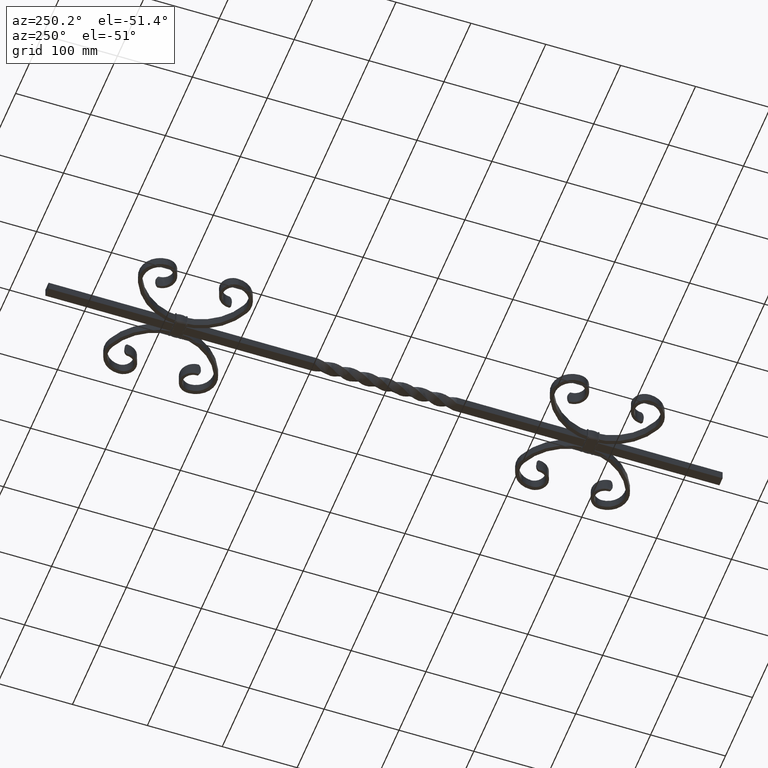
[diagram: clean part render]
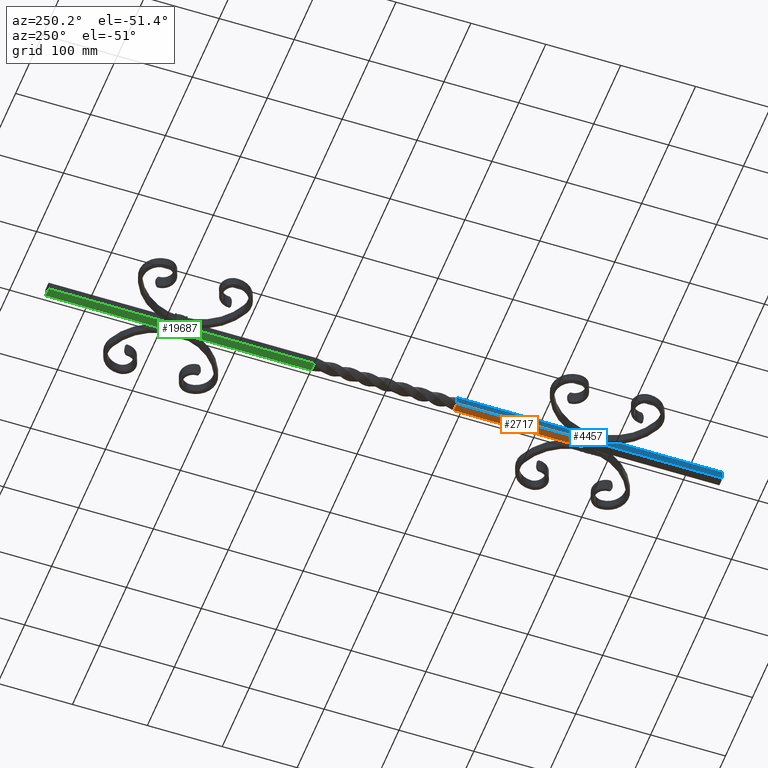
[diagram: same view with three faces highlighted in distinct colors, each labeled with its STEP entity id]
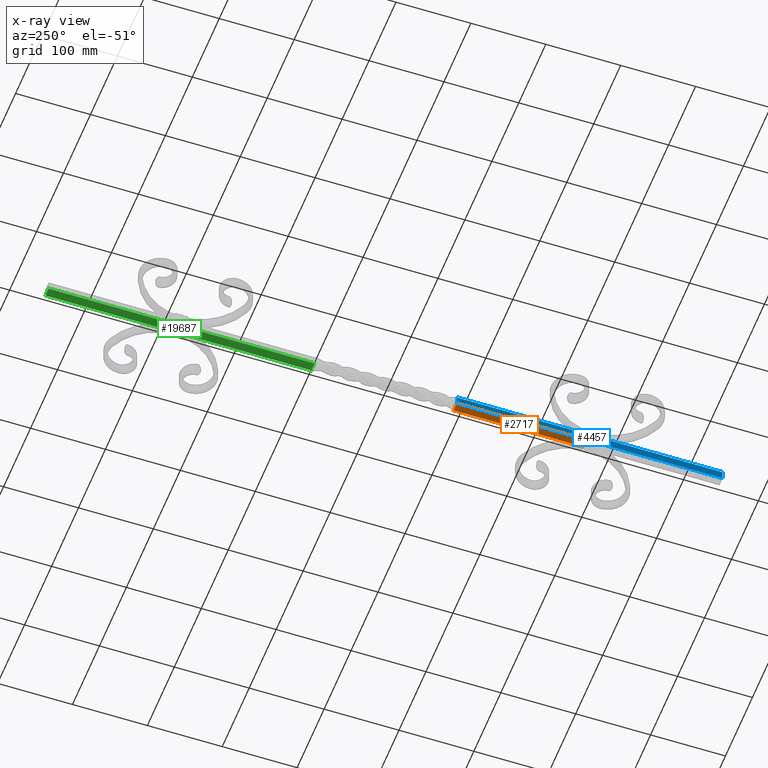
[diagram: x-ray of the same camera — body ghosted, the three highlighted faces saturated]
A machine part, auxiliary view with three faces highlighted in distinct colors.
The next image is the same camera in x-ray (body ghosted, the three faces saturated) — at least one of them is partly hidden behind the body in this view.
Their STEP definitions:

[orange] entity #2717 — the highlighted planar face has unit normal (0, 0, 1).
#254 = LINE ( 'NONE', #21807, #19804 ) ;
#531 = DIRECTION ( 'NONE',  ( 1.000000000000000000, 0.000000000000000000, -0.000000000000000000 ) ) ;
#627 = VECTOR ( 'NONE', #22597, 1000.000000000000000 ) ;
#1823 = LINE ( 'NONE', #20829, #627 ) ;
#2684 = VERTEX_POINT ( 'NONE', #4116 ) ;
#2717 = ADVANCED_FACE ( 'NONE', ( #21106 ), #4044, .F. ) ;
#3311 = CARTESIAN_POINT ( 'NONE',  ( -9.999999999999991118, -267.5000000000000000, -5.999999999999986677 ) ) ;
#3527 = EDGE_LOOP ( 'NONE', ( #4348, #14275, #8062, #13415, #11332 ) ) ;
#3812 = CARTESIAN_POINT ( 'NONE',  ( -6.000000000000000000, -210.0000000000000284, -6.000000000000001776 ) ) ;
#4044 = PLANE ( 'NONE',  #6335 ) ;
#4116 = CARTESIAN_POINT ( 'NONE',  ( -6.000000000000000000, -267.5000000000000000, -6.000000000000001776 ) ) ;
#4348 = ORIENTED_EDGE ( 'NONE', *, *, #10288, .F. ) ;
#4626 = EDGE_CURVE ( 'NONE', #12922, #22944, #16158, .T. ) ;
#5278 = DIRECTION ( 'NONE',  ( 1.000000000000000000, 0.000000000000000000, -4.336808689942021434E-17 ) ) ;
#5361 = LINE ( 'NONE', #3311, #10973 ) ;
#6122 = EDGE_CURVE ( 'NONE', #10191, #2684, #20497, .T. ) ;
#6175 = VERTEX_POINT ( 'NONE', #10051 ) ;
#6335 = AXIS2_PLACEMENT_3D ( 'NONE', #11696, #8364, #531 ) ;
#8062 = ORIENTED_EDGE ( 'NONE', *, *, #20859, .F. ) ;
#8364 = DIRECTION ( 'NONE',  ( 0.000000000000000000, 0.000000000000000000, 1.000000000000000000 ) ) ;
#8460 = CARTESIAN_POINT ( 'NONE',  ( 6.000000000000002665, -152.5000000000000284, -6.000000000000000888 ) ) ;
#10051 = CARTESIAN_POINT ( 'NONE',  ( 0.000000000000000000, -267.5000000000000000, -5.999999999999986677 ) ) ;
#10191 = VERTEX_POINT ( 'NONE', #18406 ) ;
#10288 = EDGE_CURVE ( 'NONE', #2684, #6175, #5361, .T. ) ;
#10453 = CARTESIAN_POINT ( 'NONE',  ( 6.000000000000002665, -267.5000000000000568, -6.000000000000000888 ) ) ;
#10973 = VECTOR ( 'NONE', #5278, 1000.000000000000000 ) ;
#11332 = ORIENTED_EDGE ( 'NONE', *, *, #12415, .F. ) ;
#11696 = CARTESIAN_POINT ( 'NONE',  ( -5.999999999999999112, 450.0000000000000000, -6.000000000000000888 ) ) ;
#12415 = EDGE_CURVE ( 'NONE', #6175, #22944, #254, .T. ) ;
#12922 = VERTEX_POINT ( 'NONE', #20874 ) ;
#13415 = ORIENTED_EDGE ( 'NONE', *, *, #4626, .T. ) ;
#13891 = DIRECTION ( 'NONE',  ( 1.000000000000000000, 0.000000000000000000, -4.336808689942021434E-17 ) ) ;
#14275 = ORIENTED_EDGE ( 'NONE', *, *, #6122, .F. ) ;
#16158 = B_SPLINE_CURVE_WITH_KNOTS ( 'NONE', 3,
 ( #19820, #8460, #21757, #10453 ),
 .UNSPECIFIED., .F., .F.,
 ( 4, 4 ),
 ( 0.000000000000000000, 0.4859154929577464976 ),
 .UNSPECIFIED. ) ;
#16546 = CARTESIAN_POINT ( 'NONE',  ( 6.000000000000002665, -267.5000000000000568, -6.000000000000000888 ) ) ;
#16595 = CARTESIAN_POINT ( 'NONE',  ( -5.999999999999999112, -95.00000000000002842, -6.000000000000000888 ) ) ;
#18322 = CARTESIAN_POINT ( 'NONE',  ( -6.000000000000000000, -152.5000000000000284, -6.000000000000001776 ) ) ;
#18406 = CARTESIAN_POINT ( 'NONE',  ( -5.999999999999999112, -95.00000000000002842, -6.000000000000000888 ) ) ;
#19804 = VECTOR ( 'NONE', #13891, 1000.000000000000000 ) ;
#19820 = CARTESIAN_POINT ( 'NONE',  ( 6.000000000000002665, -95.00000000000002842, -6.000000000000000888 ) ) ;
#20497 = B_SPLINE_CURVE_WITH_KNOTS ( 'NONE', 3,
 ( #16595, #18322, #3812, #22771 ),
 .UNSPECIFIED., .F., .F.,
 ( 4, 4 ),
 ( 0.000000000000000000, 0.4859154929577463311 ),
 .UNSPECIFIED. ) ;
#20829 = CARTESIAN_POINT ( 'NONE',  ( -5.999999999999999112, -95.00000000000002842, -6.000000000000000888 ) ) ;
#20859 = EDGE_CURVE ( 'NONE', #12922, #10191, #1823, .T. ) ;
#20874 = CARTESIAN_POINT ( 'NONE',  ( 6.000000000000002665, -95.00000000000002842, -6.000000000000000888 ) ) ;
#21106 = FACE_OUTER_BOUND ( 'NONE', #3527, .T. ) ;
#21757 = CARTESIAN_POINT ( 'NONE',  ( 6.000000000000002665, -210.0000000000000568, -6.000000000000000888 ) ) ;
#21807 = CARTESIAN_POINT ( 'NONE',  ( 0.000000000000000000, -267.5000000000000000, -5.999999999999970690 ) ) ;
#22597 = DIRECTION ( 'NONE',  ( -1.000000000000000000, -0.000000000000000000, 0.000000000000000000 ) ) ;
#22771 = CARTESIAN_POINT ( 'NONE',  ( -6.000000000000000000, -267.5000000000000000, -6.000000000000001776 ) ) ;
#22944 = VERTEX_POINT ( 'NONE', #16546 ) ;

[blue] entity #4457 — the highlighted planar face has unit normal (1, 0, -0).
#87 = ORIENTED_EDGE ( 'NONE', *, *, #15814, .T. ) ;
#251 = EDGE_CURVE ( 'NONE', #23475, #16460, #12163, .T. ) ;
#552 = EDGE_CURVE ( 'NONE', #2684, #23475, #21584, .T. ) ;
#567 = PLANE ( 'NONE',  #8442 ) ;
#903 = VERTEX_POINT ( 'NONE', #21330 ) ;
#1037 = ORIENTED_EDGE ( 'NONE', *, *, #552, .T. ) ;
#1065 = VERTEX_POINT ( 'NONE', #12648 ) ;
#1123 = B_SPLINE_CURVE_WITH_KNOTS ( 'NONE', 3,
 ( #1166, #5062, #10993, #10833 ),
 .UNSPECIFIED., .F., .F.,
 ( 4, 4 ),
 ( 0.000000000000000000, 0.4859154929577463311 ),
 .UNSPECIFIED. ) ;
#1166 = CARTESIAN_POINT ( 'NONE',  ( -5.999999978876454421, -94.99999992951283900, 6.000000036602284759 ) ) ;
#1336 = CARTESIAN_POINT ( 'NONE',  ( -5.999999999999999112, -95.00000000000002842, -6.000000000000000888 ) ) ;
#1583 = CARTESIAN_POINT ( 'NONE',  ( -5.999999999999998224, -450.0000000000000000, 5.999999833333332866 ) ) ;
#1674 = B_SPLINE_CURVE_WITH_KNOTS ( 'NONE', 3,
 ( #16061, #8206, #2795, #8545 ),
 .UNSPECIFIED., .F., .F.,
 ( 4, 4 ),
 ( 0.5281690140845067827, 1.000000000000000000 ),
 .UNSPECIFIED. ) ;
#2684 = VERTEX_POINT ( 'NONE', #4116 ) ;
#2795 = CARTESIAN_POINT ( 'NONE',  ( -5.999999999999998224, -394.1666666666666856, 5.999999999999999112 ) ) ;
#2932 = CARTESIAN_POINT ( 'NONE',  ( -6.000000000000000000, -267.5000000000000000, -6.000000000000001776 ) ) ;
#3727 = ORIENTED_EDGE ( 'NONE', *, *, #12471, .F. ) ;
#3812 = CARTESIAN_POINT ( 'NONE',  ( -6.000000000000000000, -210.0000000000000284, -6.000000000000001776 ) ) ;
#4116 = CARTESIAN_POINT ( 'NONE',  ( -6.000000000000000000, -267.5000000000000000, -6.000000000000001776 ) ) ;
#4416 = ORIENTED_EDGE ( 'NONE', *, *, #21239, .T. ) ;
#4457 = ADVANCED_FACE ( 'NONE', ( #13529 ), #567, .F. ) ;
#5062 = CARTESIAN_POINT ( 'NONE',  ( -5.999999999999998224, -152.5000000000000284, 6.000000000000000000 ) ) ;
#5231 = EDGE_CURVE ( 'NONE', #903, #1065, #1123, .T. ) ;
#6122 = EDGE_CURVE ( 'NONE', #10191, #2684, #20497, .T. ) ;
#6676 = CARTESIAN_POINT ( 'NONE',  ( -5.999999999999999112, -282.5000000000000000, -6.000000000000000888 ) ) ;
#8206 = CARTESIAN_POINT ( 'NONE',  ( -5.999999999999998224, -338.3333333333333144, 5.999999999999999112 ) ) ;
#8442 = AXIS2_PLACEMENT_3D ( 'NONE', #15529, #20163, #10703 ) ;
#8545 = CARTESIAN_POINT ( 'NONE',  ( -5.999999999999998224, -450.0000000000000000, 5.999999833333332866 ) ) ;
#8849 = ORIENTED_EDGE ( 'NONE', *, *, #19883, .F. ) ;
#10024 = VECTOR ( 'NONE', #19955, 1000.000000000000000 ) ;
#10191 = VERTEX_POINT ( 'NONE', #18406 ) ;
#10703 = DIRECTION ( 'NONE',  ( -7.228014483236697048E-17, 0.000000000000000000, -1.000000000000000000 ) ) ;
#10833 = CARTESIAN_POINT ( 'NONE',  ( -5.999999978876452644, -267.5000000000000000, 5.999999999999969802 ) ) ;
#10993 = CARTESIAN_POINT ( 'NONE',  ( -5.999999999999998224, -210.0000000000000284, 6.000000000000000000 ) ) ;
#12163 = B_SPLINE_CURVE_WITH_KNOTS ( 'NONE', 3,
 ( #6676, #17989, #12184, #12341 ),
 .UNSPECIFIED., .F., .F.,
 ( 4, 4 ),
 ( 0.5281690140845067827, 1.000000000000000000 ),
 .UNSPECIFIED. ) ;
#12184 = CARTESIAN_POINT ( 'NONE',  ( -5.999999999999999112, -394.1666666666666856, -6.000000000000000888 ) ) ;
#12341 = CARTESIAN_POINT ( 'NONE',  ( -5.999999833333331978, -450.0000000000000000, -6.000000000000000888 ) ) ;
#12471 = EDGE_CURVE ( 'NONE', #10191, #903, #23706, .T. ) ;
#12648 = CARTESIAN_POINT ( 'NONE',  ( -5.999999978876452644, -267.5000000000000000, 5.999999999999969802 ) ) ;
#12786 = CARTESIAN_POINT ( 'NONE',  ( -5.999999833333331978, -450.0000000000000000, -6.000000000000000888 ) ) ;
#12893 = CARTESIAN_POINT ( 'NONE',  ( -5.999999833333331978, -450.0000000000000000, -6.000000000000000888 ) ) ;
#13529 = FACE_OUTER_BOUND ( 'NONE', #17746, .T. ) ;
#14703 = CARTESIAN_POINT ( 'NONE',  ( -5.999999999999999112, -450.0000000000000000, -2.000000000000000444 ) ) ;
#14918 = ORIENTED_EDGE ( 'NONE', *, *, #251, .T. ) ;
#15081 = ORIENTED_EDGE ( 'NONE', *, *, #6122, .T. ) ;
#15529 = CARTESIAN_POINT ( 'NONE',  ( -5.999999999999999112, 450.0000000000000000, -6.000000000000000888 ) ) ;
#15573 = CARTESIAN_POINT ( 'NONE',  ( -5.999999978876452644, -282.5000000000000568, 5.999999999999968026 ) ) ;
#15814 = EDGE_CURVE ( 'NONE', #16460, #22334, #18102, .T. ) ;
#16061 = CARTESIAN_POINT ( 'NONE',  ( -5.999999978876452644, -282.5000000000000568, 5.999999999999968026 ) ) ;
#16208 = CARTESIAN_POINT ( 'NONE',  ( -5.999999999999999112, -282.5000000000000000, -6.000000000000000888 ) ) ;
#16377 = CARTESIAN_POINT ( 'NONE',  ( -6.000000000000000000, -277.4999999999999432, -6.000000000000000000 ) ) ;
#16455 = CARTESIAN_POINT ( 'NONE',  ( -5.999999999999998224, -450.0000000000000000, 5.999999833333332866 ) ) ;
#16460 = VERTEX_POINT ( 'NONE', #12893 ) ;
#16595 = CARTESIAN_POINT ( 'NONE',  ( -5.999999999999999112, -95.00000000000002842, -6.000000000000000888 ) ) ;
#17746 = EDGE_LOOP ( 'NONE', ( #87, #8849, #4416, #19569, #3727, #15081, #1037, #14918 ) ) ;
#17989 = CARTESIAN_POINT ( 'NONE',  ( -5.999999999999999112, -338.3333333333333144, -6.000000000000000888 ) ) ;
#18040 = CARTESIAN_POINT ( 'NONE',  ( -5.999999999999998224, 450.0000000000000000, 5.999999999999969802 ) ) ;
#18088 = CARTESIAN_POINT ( 'NONE',  ( -5.999999999999999112, -282.5000000000000000, -6.000000000000000888 ) ) ;
#18102 = B_SPLINE_CURVE_WITH_KNOTS ( 'NONE', 3,
 ( #12786, #14703, #24283, #1583 ),
 .UNSPECIFIED., .F., .F.,
 ( 4, 4 ),
 ( 0.000000000000000000, 0.9999999583333334385 ),
 .UNSPECIFIED. ) ;
#18322 = CARTESIAN_POINT ( 'NONE',  ( -6.000000000000000000, -152.5000000000000284, -6.000000000000001776 ) ) ;
#18406 = CARTESIAN_POINT ( 'NONE',  ( -5.999999999999999112, -95.00000000000002842, -6.000000000000000888 ) ) ;
#18708 = DIRECTION ( 'NONE',  ( 0.000000000000000000, 1.000000000000000000, 0.000000000000000000 ) ) ;
#19569 = ORIENTED_EDGE ( 'NONE', *, *, #5231, .F. ) ;
#19581 = LINE ( 'NONE', #18040, #21663 ) ;
#19840 = VERTEX_POINT ( 'NONE', #15573 ) ;
#19883 = EDGE_CURVE ( 'NONE', #19840, #22334, #1674, .T. ) ;
#19955 = DIRECTION ( 'NONE',  ( 7.228014483236697048E-17, -0.000000000000000000, 1.000000000000000000 ) ) ;
#20163 = DIRECTION ( 'NONE',  ( 1.000000000000000000, 0.000000000000000000, -7.228014483236697048E-17 ) ) ;
#20497 = B_SPLINE_CURVE_WITH_KNOTS ( 'NONE', 3,
 ( #16595, #18322, #3812, #22771 ),
 .UNSPECIFIED., .F., .F.,
 ( 4, 4 ),
 ( 0.000000000000000000, 0.4859154929577463311 ),
 .UNSPECIFIED. ) ;
#21239 = EDGE_CURVE ( 'NONE', #19840, #1065, #19581, .T. ) ;
#21330 = CARTESIAN_POINT ( 'NONE',  ( -5.999999978876454421, -94.99999992951283900, 6.000000036602284759 ) ) ;
#21584 = B_SPLINE_CURVE_WITH_KNOTS ( 'NONE', 3,
 ( #2932, #22155, #16377, #16208 ),
 .UNSPECIFIED., .F., .F.,
 ( 4, 4 ),
 ( 0.4859154929577463311, 0.5281690140845067827 ),
 .UNSPECIFIED. ) ;
#21663 = VECTOR ( 'NONE', #18708, 1000.000000000000000 ) ;
#22155 = CARTESIAN_POINT ( 'NONE',  ( -6.000000000000000000, -272.4999999999999432, -6.000000000000000888 ) ) ;
#22334 = VERTEX_POINT ( 'NONE', #16455 ) ;
#22771 = CARTESIAN_POINT ( 'NONE',  ( -6.000000000000000000, -267.5000000000000000, -6.000000000000001776 ) ) ;
#23475 = VERTEX_POINT ( 'NONE', #18088 ) ;
#23706 = LINE ( 'NONE', #1336, #10024 ) ;
#24283 = CARTESIAN_POINT ( 'NONE',  ( -5.999999999999999112, -450.0000000000000000, 1.999999999999999556 ) ) ;

[green] entity #19687 — the highlighted planar face has unit normal (0, 0, 1).
#3879 = DIRECTION ( 'NONE',  ( 1.000000000000000000, 0.000000000000000000, -0.000000000000000000 ) ) ;
#4534 = ORIENTED_EDGE ( 'NONE', *, *, #10652, .F. ) ;
#4671 = CARTESIAN_POINT ( 'NONE',  ( 2.000000000000002220, 450.0000000000000000, -6.000000000000000888 ) ) ;
#5572 = CARTESIAN_POINT ( 'NONE',  ( -6.000000007872948515, 95.00000002627092499, -5.999999986357897441 ) ) ;
#5655 = CARTESIAN_POINT ( 'NONE',  ( -5.999999833333331978, 450.0000000000000000, -6.000000000000000888 ) ) ;
#5904 = B_SPLINE_CURVE_WITH_KNOTS ( 'NONE', 3,
 ( #5655, #9131, #16727, #18554 ),
 .UNSPECIFIED., .F., .F.,
 ( 4, 4 ),
 ( 0.000000000000000000, 1.000000000000000000 ),
 .UNSPECIFIED. ) ;
#6106 = EDGE_CURVE ( 'NONE', #10635, #22350, #22258, .T. ) ;
#6514 = CARTESIAN_POINT ( 'NONE',  ( -1.999999999999998668, 450.0000000000000568, -6.000000000000000888 ) ) ;
#9130 = EDGE_CURVE ( 'NONE', #9940, #13999, #11615, .T. ) ;
#9131 = CARTESIAN_POINT ( 'NONE',  ( -5.999999999999999112, 331.6666666666667425, -6.000000000000000888 ) ) ;
#9940 = VERTEX_POINT ( 'NONE', #24141 ) ;
#10122 = VECTOR ( 'NONE', #18985, 1000.000000000000000 ) ;
#10617 = CARTESIAN_POINT ( 'NONE',  ( 6.000000000000002665, 450.0000000000000000, -5.999999833333335530 ) ) ;
#10635 = VERTEX_POINT ( 'NONE', #10617 ) ;
#10652 = EDGE_CURVE ( 'NONE', #22350, #13999, #5904, .T. ) ;
#10826 = CARTESIAN_POINT ( 'NONE',  ( 5.999999986357885007, 95.00000002627088236, -6.000000007873161678 ) ) ;
#11615 = LINE ( 'NONE', #11708, #10122 ) ;
#11708 = CARTESIAN_POINT ( 'NONE',  ( -5.999999999999999112, 95.00000000000002842, -6.000000000000000888 ) ) ;
#12189 = ORIENTED_EDGE ( 'NONE', *, *, #15695, .T. ) ;
#12364 = CARTESIAN_POINT ( 'NONE',  ( 6.000000000000002665, 213.3333333333333712, -6.000000000000000888 ) ) ;
#12602 = EDGE_LOOP ( 'NONE', ( #12189, #21015, #4534, #22325 ) ) ;
#12712 = FACE_OUTER_BOUND ( 'NONE', #12602, .T. ) ;
#13999 = VERTEX_POINT ( 'NONE', #5572 ) ;
#15026 = CARTESIAN_POINT ( 'NONE',  ( -5.999999833333331978, 450.0000000000000000, -6.000000000000000888 ) ) ;
#15695 = EDGE_CURVE ( 'NONE', #10635, #9940, #23238, .T. ) ;
#16351 = CARTESIAN_POINT ( 'NONE',  ( -5.999999833333331978, 450.0000000000000000, -6.000000000000000888 ) ) ;
#16727 = CARTESIAN_POINT ( 'NONE',  ( -5.999999999999999112, 213.3333333333333712, -6.000000000000000888 ) ) ;
#16890 = PLANE ( 'NONE',  #21995 ) ;
#18554 = CARTESIAN_POINT ( 'NONE',  ( -6.000000007872948515, 95.00000002627092499, -5.999999986357897441 ) ) ;
#18819 = DIRECTION ( 'NONE',  ( 0.000000000000000000, 0.000000000000000000, 1.000000000000000000 ) ) ;
#18985 = DIRECTION ( 'NONE',  ( -1.000000000000000000, -0.000000000000000000, 0.000000000000000000 ) ) ;
#19687 = ADVANCED_FACE ( 'NONE', ( #12712 ), #16890, .F. ) ;
#20120 = CARTESIAN_POINT ( 'NONE',  ( 6.000000000000002665, 331.6666666666667425, -6.000000000000000888 ) ) ;
#20838 = CARTESIAN_POINT ( 'NONE',  ( -5.999999999999999112, 450.0000000000000000, -6.000000000000000888 ) ) ;
#21015 = ORIENTED_EDGE ( 'NONE', *, *, #9130, .T. ) ;
#21909 = CARTESIAN_POINT ( 'NONE',  ( 6.000000000000002665, 450.0000000000000000, -5.999999833333335530 ) ) ;
#21995 = AXIS2_PLACEMENT_3D ( 'NONE', #20838, #18819, #3879 ) ;
#22258 = B_SPLINE_CURVE_WITH_KNOTS ( 'NONE', 3,
 ( #21909, #4671, #6514, #16351 ),
 .UNSPECIFIED., .F., .F.,
 ( 4, 4 ),
 ( 0.000000000000000000, 0.9999999583333332165 ),
 .UNSPECIFIED. ) ;
#22325 = ORIENTED_EDGE ( 'NONE', *, *, #6106, .F. ) ;
#22350 = VERTEX_POINT ( 'NONE', #15026 ) ;
#23238 = B_SPLINE_CURVE_WITH_KNOTS ( 'NONE', 3,
 ( #23898, #20120, #12364, #10826 ),
 .UNSPECIFIED., .F., .F.,
 ( 4, 4 ),
 ( 0.000000000000000000, 1.000000000000000000 ),
 .UNSPECIFIED. ) ;
#23898 = CARTESIAN_POINT ( 'NONE',  ( 6.000000000000002665, 450.0000000000000000, -5.999999833333335530 ) ) ;
#24141 = CARTESIAN_POINT ( 'NONE',  ( 5.999999986357885007, 95.00000002627088236, -6.000000007873161678 ) ) ;